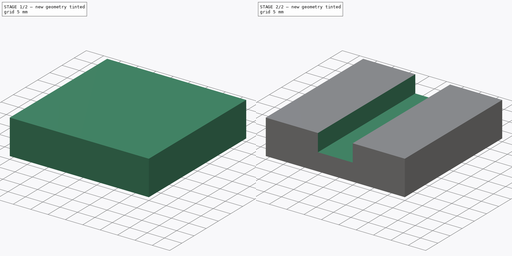
[diagram: build sequence overview — one tinted view per stage of 2, left to right]
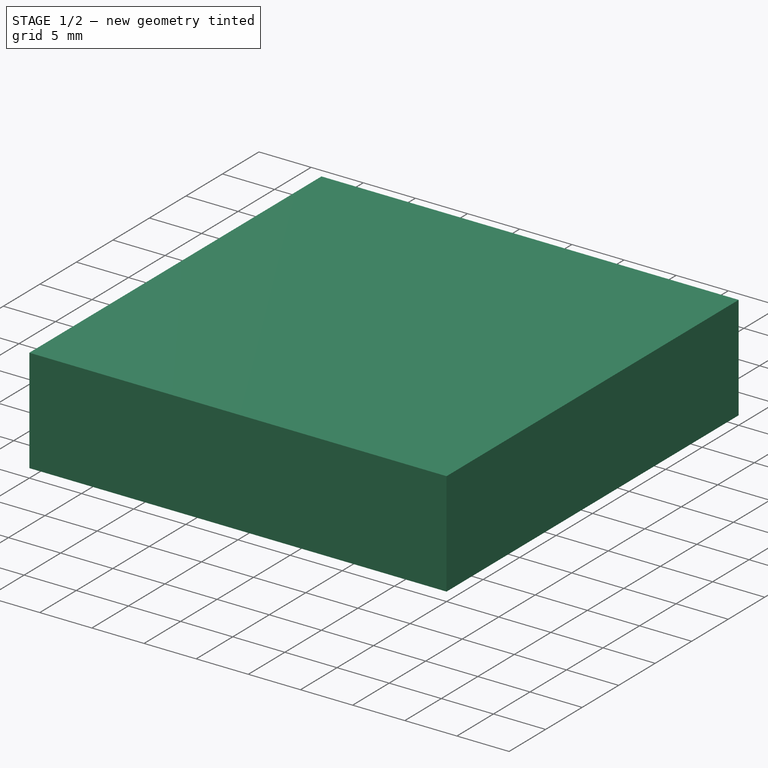
[diagram: stage 1 of 2 — iso view after this stage's code; geometry added in this stage tinted green]
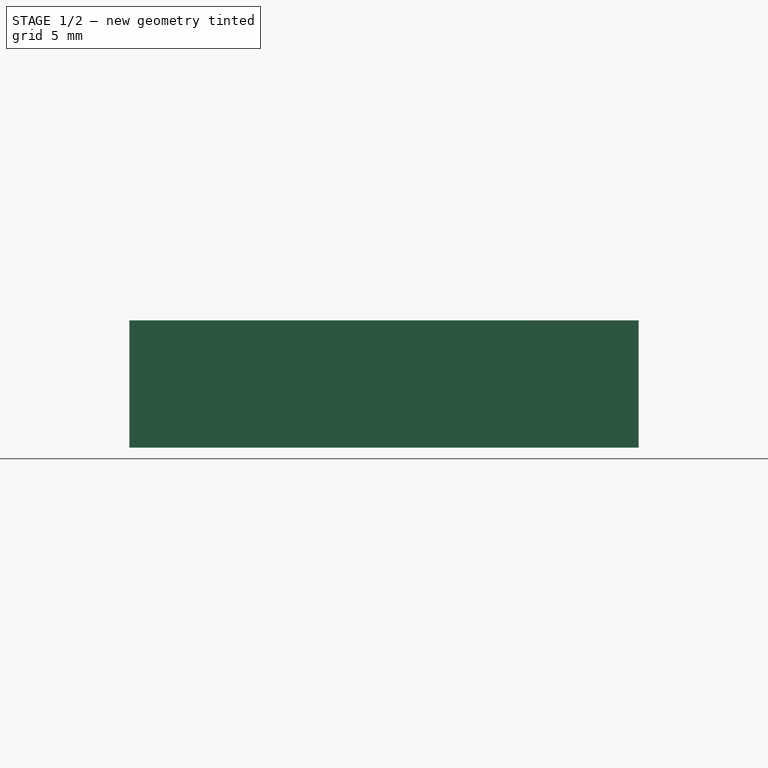
[diagram: stage 1 of 2 — front view after this stage's code; geometry added in this stage tinted green]
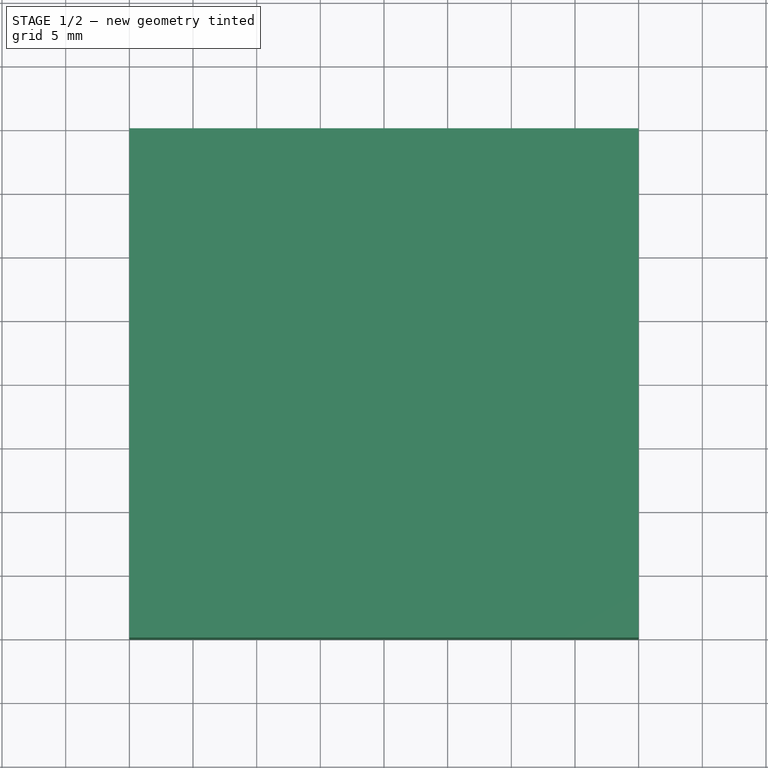
[diagram: stage 1 of 2 — top view after this stage's code; geometry added in this stage tinted green]
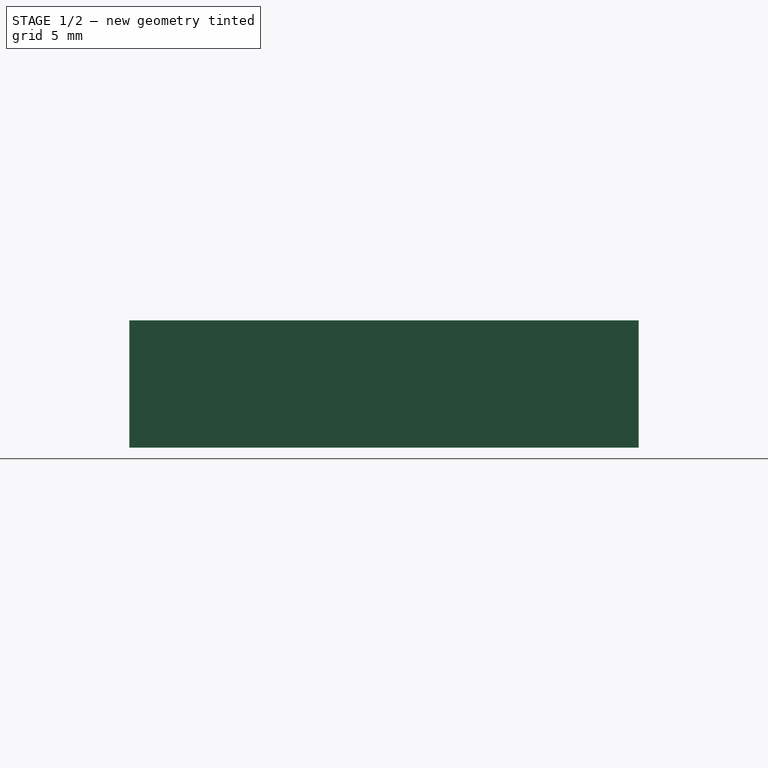
[diagram: stage 1 of 2 — right view after this stage's code; geometry added in this stage tinted green]
FCSTD DOCUMENT  (FreeCAD 0.19R24276 (Git))
Label: suport
License: All rights reserved
LicenseURL: http://en.wikipedia.org/wiki/All_rights_reserved
objects: Drawing::FeatureViewPart×4, Sketcher::SketchObject×2, PartDesign::Pad×1, PartDesign::Pocket×1, PartDesign::Body×1, Drawing::FeaturePage×1
note: 7 computed .brp shape members not serialized (recipe doc carries the construction recipe); baked Part::Feature solids carry a one-line shape summary decoded from their .brp

FEATURE [Sketcher::SketchObject] Sketch
  FullyConstrained = true
  MapMode = 5
  Support = -> [XY_Plane]
  sketch-geometry (4):
    g0: LineSegment StartX=0 StartY=40 StartZ=0 EndX=0 EndY=0 EndZ=0
    g1: LineSegment StartX=0 StartY=0 StartZ=0 EndX=40 EndY=0 EndZ=0
    g2: LineSegment StartX=40 StartY=0 StartZ=0 EndX=40 EndY=40 EndZ=0
    g3: LineSegment StartX=40 StartY=40 StartZ=0 EndX=0 EndY=40 EndZ=0
  constraints (11):
    c: Vertical(g0)
    c: Coincident(g0,g1)
    c: Horizontal(g1)
    c: Coincident(g1,g2)
    c: Vertical(g2)
    c: Coincident(g2,g3)
    c: Coincident(g3,g0)
    c: Horizontal(g3)
    c: DistanceY(g2,g2) = 40
    c: DistanceX(g1,g1) = 40
    c: Coincident(g0,g-1)
FEATURE [PartDesign::Pad] Pad
  Direction = (1,1,1)
  Length = 10
  Length2 = 100
  Profile = -> Sketch
  Type = 0
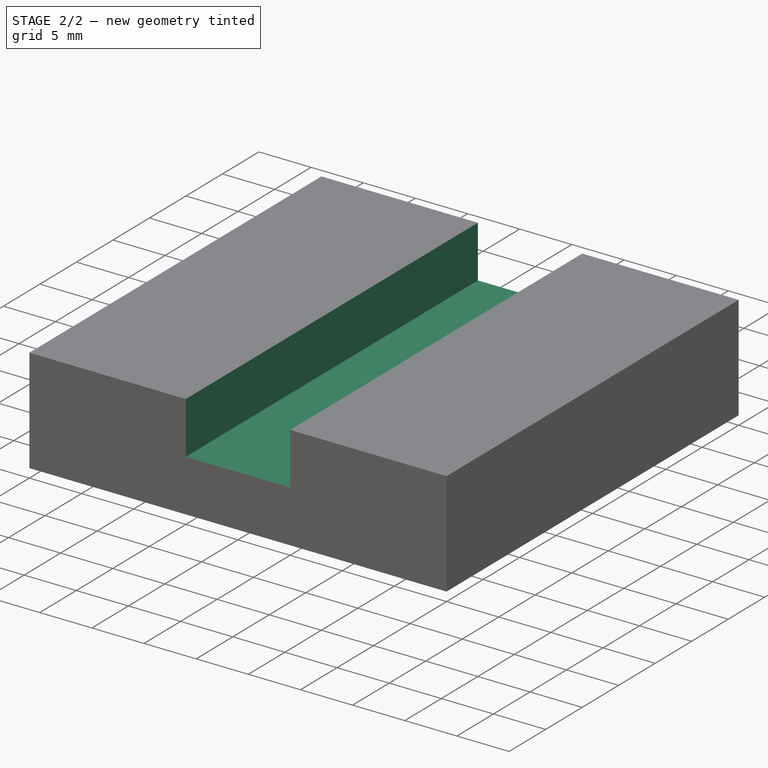
[diagram: stage 2 of 2 — iso view after this stage's code; geometry added in this stage tinted green]
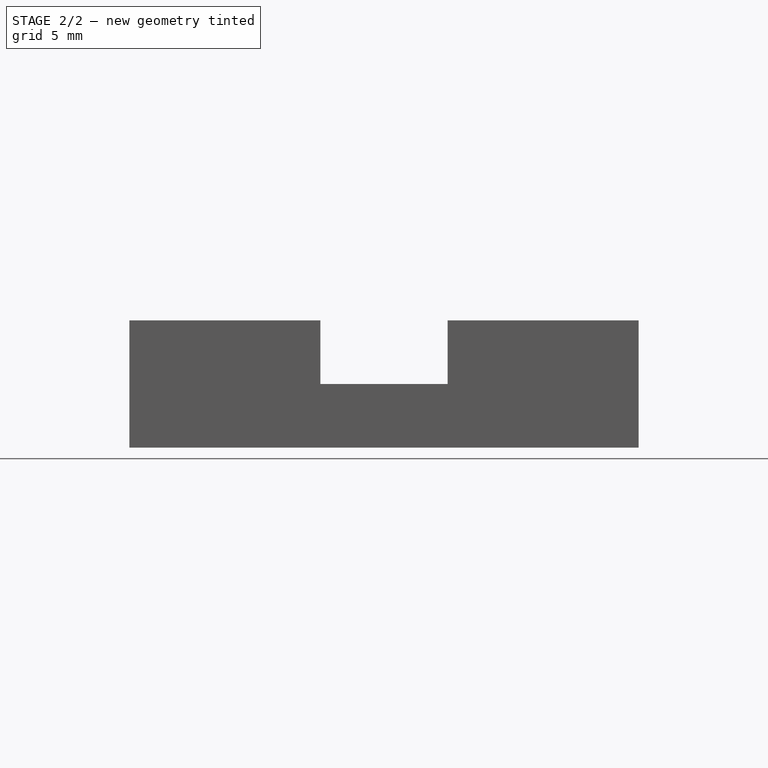
[diagram: stage 2 of 2 — front view after this stage's code; geometry added in this stage tinted green]
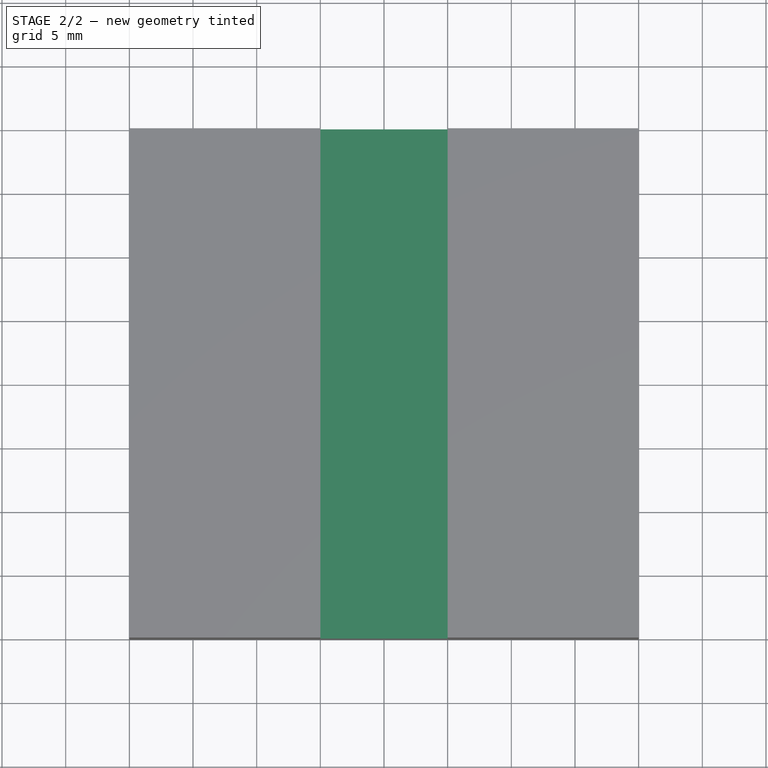
[diagram: stage 2 of 2 — top view after this stage's code; geometry added in this stage tinted green]
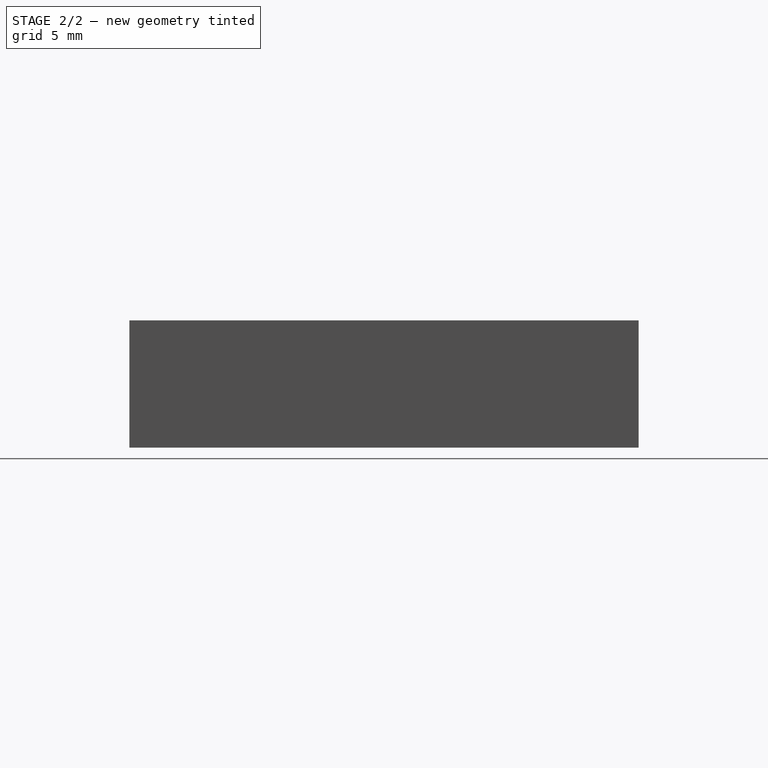
[diagram: stage 2 of 2 — right view after this stage's code; geometry added in this stage tinted green]
FEATURE [Sketcher::SketchObject] Sketch001
  FullyConstrained = true
  MapMode = 5
  Placement = pos=(0,0,10) rot=(0,0,1;0rad)
  Support = -> [Pad]
  sketch-geometry (4):
    g0: LineSegment StartX=15 StartY=40 StartZ=0 EndX=15 EndY=0 EndZ=0
    g1: LineSegment StartX=25 StartY=0 StartZ=0 EndX=25 EndY=40 EndZ=0
    g2: LineSegment StartX=15 StartY=40 StartZ=0 EndX=25 EndY=40 EndZ=0
    g3: LineSegment StartX=15 StartY=0 StartZ=0 EndX=25 EndY=0 EndZ=0
  constraints (12):
    c: PointOnObject(g0,g-1)
    c: Vertical(g0)
    c: DistanceY(g0,g0) = 40
    c: DistanceX(g-1,g0) = 15
    c: PointOnObject(g1,g-1)
    c: Vertical(g1)
    c: DistanceY(g1,g1) = 40
    c: DistanceX(g-1,g1) = 25
    c: Coincident(g2,g0)
    c: Coincident(g2,g1)
    c: Coincident(g3,g0)
    c: Coincident(g3,g1)
FEATURE [PartDesign::Pocket] Pocket
  BaseFeature = -> Pad
  Length = 5
  Length2 = 100
  Profile = -> Sketch001
  Type = 0
FEATURE [PartDesign::Body] Body
  Group = -> [Sketch,Pad,Sketch001,Pocket]
  Origin = -> Origin
  Tip = -> Pocket
FEATURE [Drawing::FeatureViewPart] Ortho  label="Ortho_0_0"
  Direction = (1,0,0)
  HiddenWidth = 0.15
  LineWidth = 0.35
  Rotation = -90
  Scale = 3
  ShowHiddenLines = false
  ShowSmoothLines = false
  Source = -> Body
  Tolerance = 0.05
  ViewResult = <g id="Ortho_0_0"\n   transform="rotate(-90,63.3333,204.667) translate(63.3333,204.667) scale(3,3)"\n  >\n<g   fill="none"\n   stroke="rgb(0, 0, 0)"\n   stroke-linecap="butt"\n   stroke-linejoin="miter"\n   stroke-width="0.116667"\n   transform="scale(1,-1)"\n  >\n<path id= "1" d=" M 0 -40 L 10 -40 " />\n<path id= "2" d=" M 0 0 L 10 0 " />\n<path id= "3" d=" M 0 0 L 0 -40 " />\n<path id= "4" d=" M 10 0 L 10 -40 " />\n</g>\n</g>
  Visible = true
  X = 63.3333
  Y = 204.667
FEATURE [Drawing::FeatureViewPart] Ortho001  label="Ortho_0_1"
  Direction = (0,0,1)
  HiddenWidth = 0.15
  LineWidth = 0.35
  Rotation = 90
  Scale = 3
  ShowHiddenLines = false
  ShowSmoothLines = false
  Source = -> Body
  Tolerance = 0.05
  ViewResult = <g id="Ortho_0_1"\n   transform="rotate(90,63.3333,32.3333) translate(63.3333,32.3333) scale(3,3)"\n  >\n<g   fill="none"\n   stroke="rgb(0, 0, 0)"\n   stroke-linecap="butt"\n   stroke-linejoin="miter"\n   stroke-width="0.116667"\n   transform="scale(1,-1)"\n  >\n<path id= "1" d=" M 0 40 L 0 0 " />\n<path id= "2" d=" M 15 40 L 0 40 " />\n<path id= "3" d=" M 15 40 L 25 40 " />\n<path id= "4" d=" M 40 40 L 25 40 " />\n<path id= "5" d=" M 25 0 L 40 0 " />\n<path id= "6" d=" M 15 0 L 25 0 " />\n<path id= "7" d=" M 0 0 L 15 0 " />\n<path id= "8" d=" M 15 40 L 15 0 " />\n<path id= "9" d=" M 25 0 L 25 40 " />\n<path id= "10" d=" M 40 0 L 40 40 " />\n</g>\n</g>
  Visible = true
  X = 63.3333
  Y = 32.3333
FEATURE [Drawing::FeatureViewPart] Ortho002  label="Ortho_1_1"
  Direction = (0.57735,0.57735,0.57735)
  HiddenWidth = 0.15
  LineWidth = 0.35
  Rotation = 120
  Scale = 3
  ShowHiddenLines = false
  ShowSmoothLines = false
  Source = -> Body
  Tolerance = 0.05
  ViewResult = <g id="Ortho_1_1"\n   transform="rotate(120,296.667,55.591) translate(296.667,55.591) scale(3,3)"\n  >\n<g   fill="none"\n   stroke="rgb(0, 0, 0)"\n   stroke-linecap="butt"\n   stroke-linejoin="miter"\n   stroke-width="0.116667"\n   transform="scale(1,-1)"\n  >\n<path id= "1" d=" M 0 32.6599 L -7.07107 28.5774 " />\n<path id= "2" d=" M -7.07107 28.5774 L -7.07107 -4.08248 " />\n<path id= "3" d=" M 28.2843 16.3299 L 0 32.6599 " />\n<path id= "4" d=" M 3.53553 22.4537 L -7.07107 28.5774 " />\n<path id= "5" d=" M 3.53553 22.4537 L 7.07107 24.4949 " />\n<path id= "6" d=" M 7.07107 24.4949 L 14.1421 20.4124 " />\n<path id= "7" d=" M 10.6066 18.3712 L 14.1421 20.4124 " />\n<path id= "8" d=" M 21.2132 12.2474 L 10.6066 18.3712 " />\n<path id= "9" d=" M 28.2843 16.3299 L 21.2132 12.2474 " />\n<path id= "10" d=" M 28.2843 -16.3299 L 21.2132 -20.4124 " />\n<path id= "11" d=" M 10.6066 -14.2887 L 21.2132 -20.4124 " />\n<path id= "12" d=" M 7.07107 -8.16497 L 10.6066 -10.2062 " />\n<path id= "13" d=" M 3.53553 -10.2062 L 7.07107 -8.16497 " />\n<path id= "14" d=" M -7.07107 -4.08248 L 3.53553 -10.2062 " />\n<path id= "15" d=" M 28.2843 -16.3299 L 28.2843 16.3299 " />\n<path id= "16" d=" M 3.53553 22.4537 L 3.53553 -10.2062 " />\n<path id= "17" d=" M 7.07107 24.4949 L 7.07107 -8.16497 " />\n<path id= "18" d=" M 10.6066 -14.2887 L 10.6066 18.3712 " />\n<path id= "19" d=" M 21.2132 -20.4124 L 21.2132 12.2474 " />\n</g>\n</g>
  Visible = true
  X = 296.667
  Y = 55.591
FEATURE [Drawing::FeatureViewPart] Ortho003  label="Ortho_1_0"
  Direction = (0,1,0)
  HiddenWidth = 0.15
  LineWidth = 0.35
  Rotation = -90
  Scale = 3
  ShowHiddenLines = false
  ShowSmoothLines = false
  Source = -> Body
  Tolerance = 0.05
  ViewResult = <g id="Ortho_1_0"\n   transform="rotate(-90,356.667,204.667) translate(356.667,204.667) scale(3,3)"\n  >\n<g   fill="none"\n   stroke="rgb(0, 0, 0)"\n   stroke-linecap="butt"\n   stroke-linejoin="miter"\n   stroke-width="0.116667"\n   transform="scale(1,-1)"\n  >\n<path id= "1" d=" M 0 0 L 10 0 " />\n<path id= "2" d=" M 0 40 L 0 0 " />\n<path id= "3" d=" M 10 15 L 10 0 " />\n<path id= "4" d=" M 10 15 L 5 15 " />\n<path id= "5" d=" M 5 15 L 5 25 " />\n<path id= "6" d=" M 10 25 L 5 25 " />\n<path id= "7" d=" M 10 40 L 10 25 " />\n<path id= "8" d=" M 0 40 L 10 40 " />\n</g>\n</g>
  Visible = true
  X = 356.667
  Y = 204.667
FEATURE [Drawing::FeaturePage] Page
  EditableTexts = AUTHOR NAME | CREATION DATE | SUPERVISOR NAME | CHECK DATE | SCALE | WEIGHT | NUMBER | SHEET | TITLE | SUBTITLE
  Group = -> [Ortho,Ortho001,Ortho002,Ortho003]
  Template = /snap/freecad/22/opt/local/FreeCAD-0.19/share/Mod/Drawing/Templates/A3_Landscape.svg
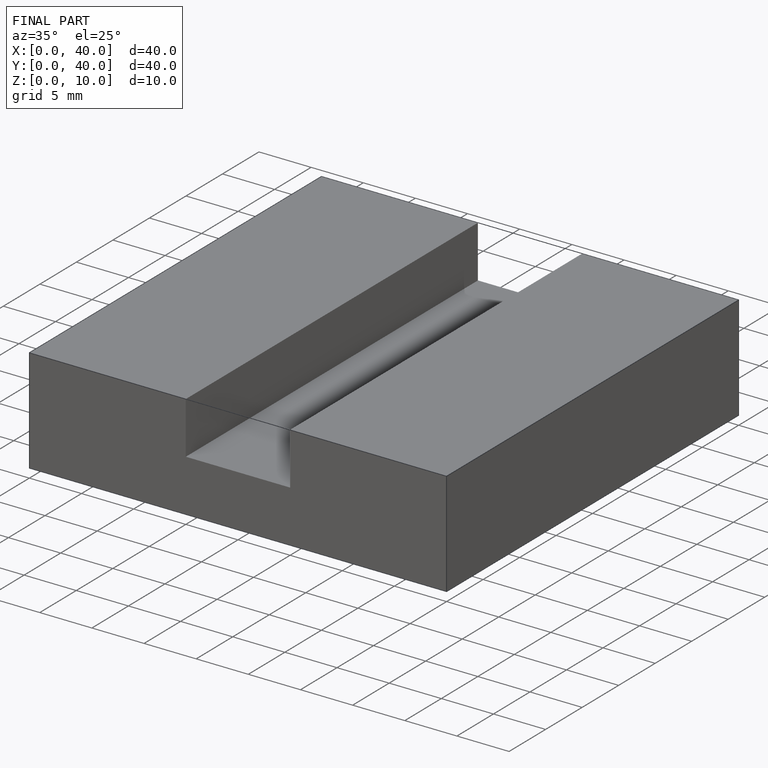
[diagram: finished part — iso view with bounding-box wireframe]
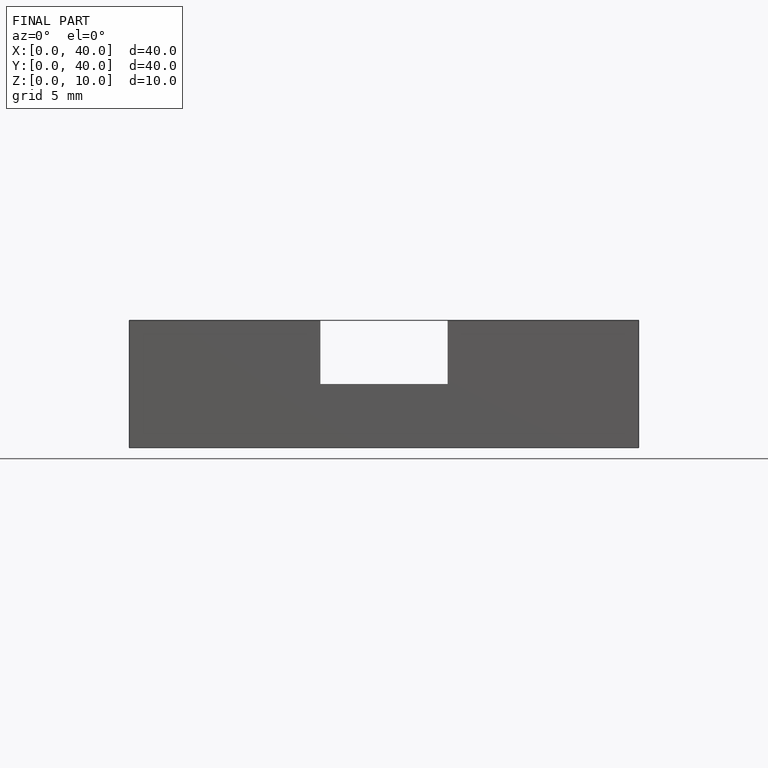
[diagram: finished part — front view with bounding-box wireframe]
